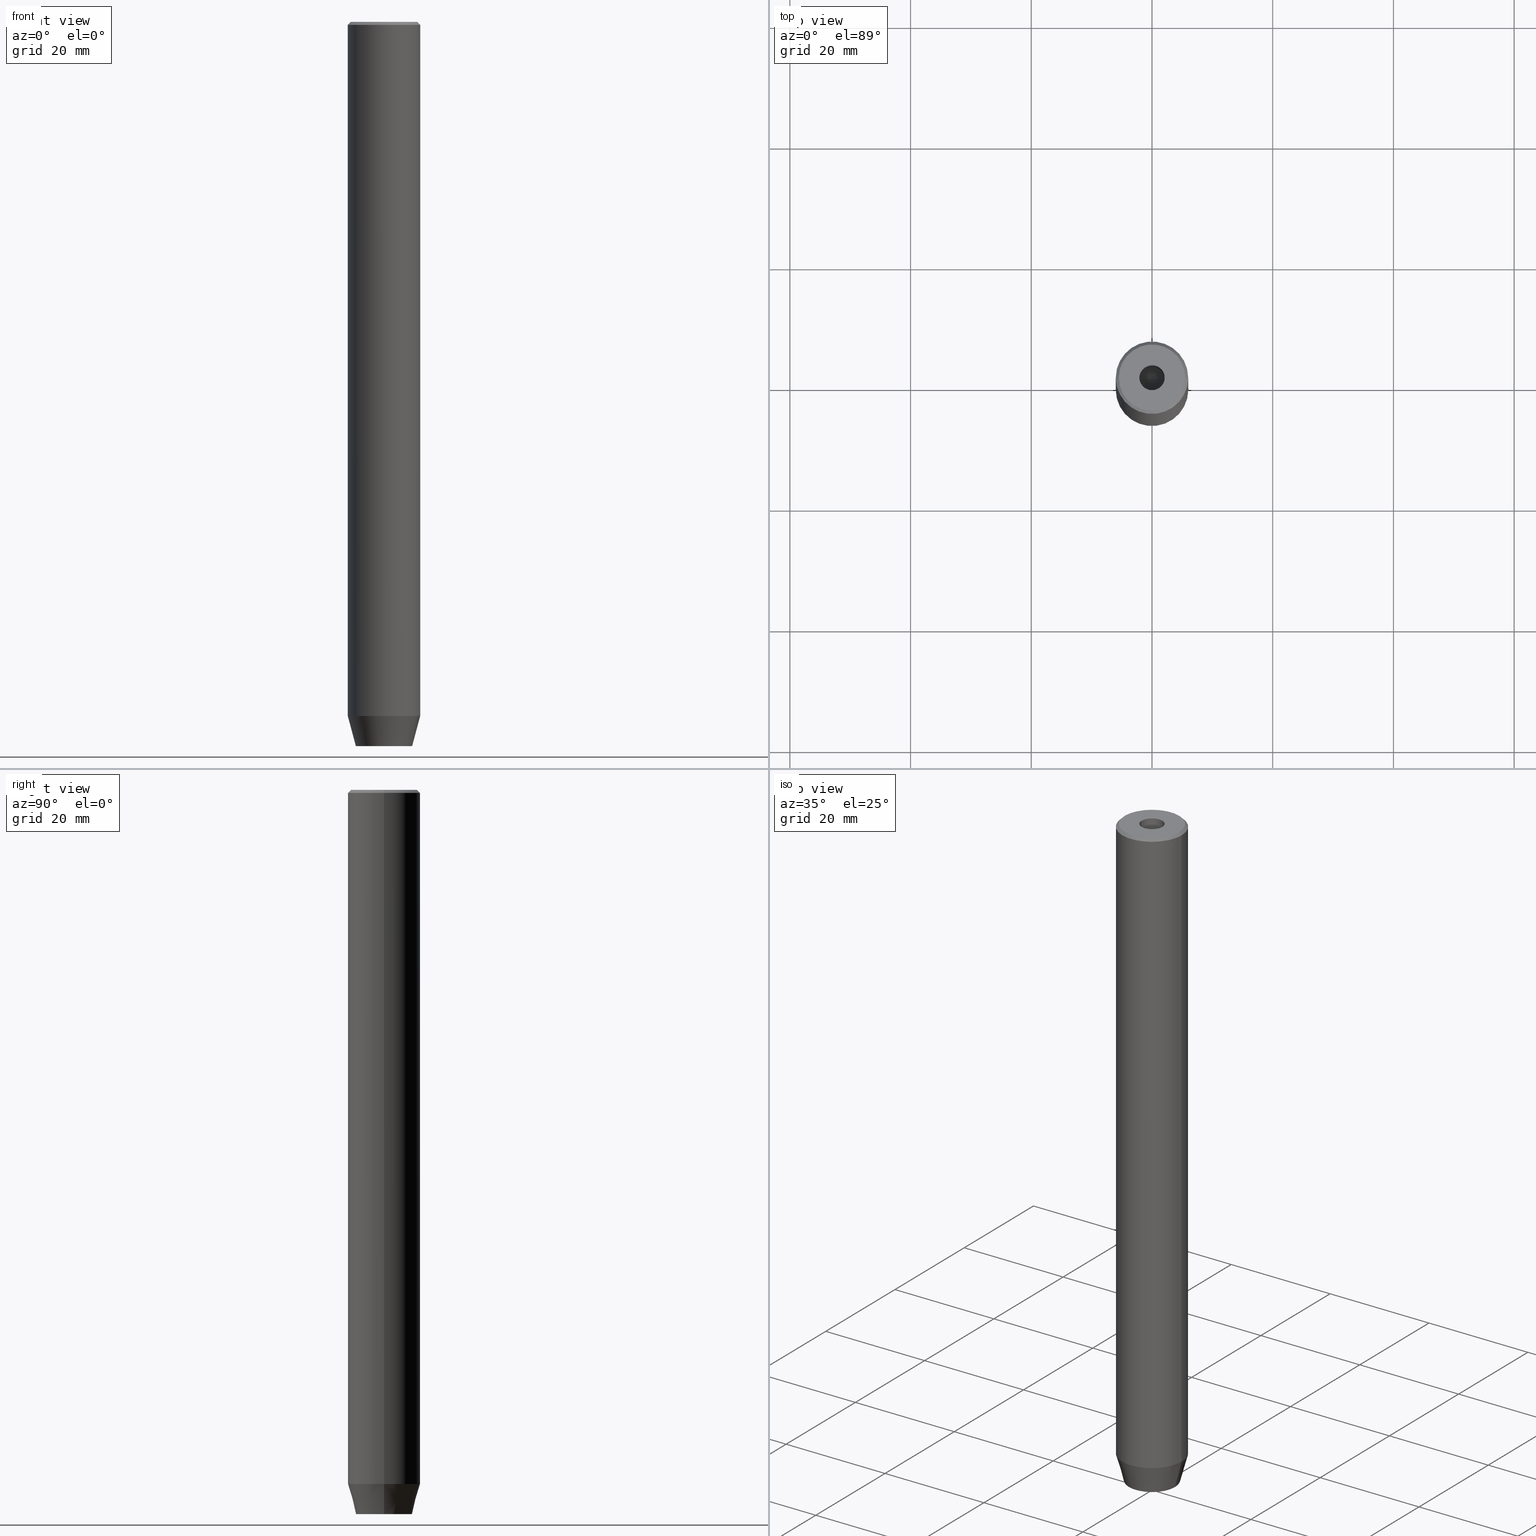
[diagram: canonical four-view strip — front | top / right | iso, engineering-drawing reading convention]
A machine part, canonical four-view strip (front | top / right | iso — engineering-drawing reading convention). The complete STEP part file that produces these views, byte-faithful:
ISO-10303-21;
HEADER;
FILE_DESCRIPTION (( 'STEP AP203' ),
    '1' );
FILE_NAME ('c9da.STEP',
    '2024-01-02T21:55:24',
    ( '' ),
    ( '' ),
    'SwSTEP 2.0',
    'SolidWorks 2019',
    '' );
FILE_SCHEMA (( 'CONFIG_CONTROL_DESIGN' ));
ENDSEC;

DATA;
#1 = CARTESIAN_POINT ( 'NONE',  ( 2.500000000000000000, -1.443375672974064106, -117.2000000000000028 ) ) ;
#2 = LINE ( 'NONE', #479, #304 ) ;
#3 = VECTOR ( 'NONE', #81, 1000.000000000000114 ) ;
#4 = ORIENTED_EDGE ( 'NONE', *, *, #407, .T. ) ;
#5 = ORIENTED_EDGE ( 'NONE', *, *, #425, .T. ) ;
#6 = APPROVAL_STATUS ( 'not_yet_approved' ) ;
#7 = FACE_OUTER_BOUND ( 'NONE', #466, .T. ) ;
#8 = ORIENTED_EDGE ( 'NONE', *, *, #184, .F. ) ;
#9 = DIRECTION ( 'NONE',  ( 0.000000000000000000, -0.000000000000000000, 1.000000000000000000 ) ) ;
#10 = ORIENTED_EDGE ( 'NONE', *, *, #412, .F. ) ;
#11 = CARTESIAN_POINT ( 'NONE',  ( -1.250000000000000444, 2.165063509461097269, -117.2000000000000028 ) ) ;
#12 = ORIENTED_EDGE ( 'NONE', *, *, #563, .F. ) ;
#13 = ORIENTED_EDGE ( 'NONE', *, *, #383, .F. ) ;
#14 = CALENDAR_DATE ( 2024, 2, 1 ) ;
#15 = EDGE_CURVE ( 'NONE', #491, #474, #441, .T. ) ;
#16 = FACE_OUTER_BOUND ( 'NONE', #166, .T. ) ;
#17 = EDGE_CURVE ( 'NONE', #374, #385, #111, .T. ) ;
#18 = CARTESIAN_POINT ( 'NONE',  ( 0.000000000000000000, 0.000000000000000000, 0.000000000000000000 ) ) ;
#19 = ORIENTED_EDGE ( 'NONE', *, *, #407, .F. ) ;
#20 = SECURITY_CLASSIFICATION_LEVEL ( 'unclassified' ) ;
#21 = DIRECTION ( 'NONE',  ( -0.000000000000000000, -0.000000000000000000, 1.000000000000000000 ) ) ;
#22 = ORIENTED_EDGE ( 'NONE', *, *, #17, .T. ) ;
#23 = DIRECTION ( 'NONE',  ( 1.000000000000000000, 0.000000000000000000, 0.000000000000000000 ) ) ;
#24 = AXIS2_PLACEMENT_3D ( 'NONE', #75, #259, #215 ) ;
#25 = PERSON_AND_ORGANIZATION ( #448, #265 ) ;
#26 = LOCAL_TIME ( 22, 55, 24.00000000000000000, #338 ) ;
#27 = DIRECTION ( 'NONE',  ( 0.000000000000000000, 0.000000000000000000, -1.000000000000000000 ) ) ;
#28 = VERTEX_POINT ( 'NONE', #135 ) ;
#29 = FACE_OUTER_BOUND ( 'NONE', #386, .T. ) ;
#30 = EDGE_CURVE ( 'NONE', #557, #61, #546, .T. ) ;
#31 = ORIENTED_EDGE ( 'NONE', *, *, #80, .F. ) ;
#32 = EDGE_CURVE ( 'NONE', #143, #233, #498, .T. ) ;
#33 = LINE ( 'NONE', #212, #462 ) ;
#34 = CARTESIAN_POINT ( 'NONE',  ( 2.099999999999996980, 0.000000000000000000, -15.00000000000000000 ) ) ;
#35 = VERTEX_POINT ( 'NONE', #587 ) ;
#36 = CARTESIAN_POINT ( 'NONE',  ( 0.000000000000000000, -2.886751345948128211, -117.2000000000000028 ) ) ;
#37 = AXIS2_PLACEMENT_3D ( 'NONE', #521, #248, #492 ) ;
#38 = VECTOR ( 'NONE', #318, 1000.000000000000000 ) ;
#39 = EDGE_LOOP ( 'NONE', ( #326, #193, #481, #330 ) ) ;
#40 = DIRECTION ( 'NONE',  ( -0.000000000000000000, -0.000000000000000000, 1.000000000000000000 ) ) ;
#41 = UNCERTAINTY_MEASURE_WITH_UNIT (LENGTH_MEASURE( 1.000000000000000082E-05 ), #65, 'distance_accuracy_value', 'NONE');
#42 = DIRECTION ( 'NONE',  ( 1.000000000000000000, 0.000000000000000000, -0.000000000000000000 ) ) ;
#43 = FACE_OUTER_BOUND ( 'NONE', #340, .T. ) ;
#44 = DIRECTION ( 'NONE',  ( -0.000000000000000000, -0.000000000000000000, 1.000000000000000000 ) ) ;
#45 = CARTESIAN_POINT ( 'NONE',  ( 0.000000000000000000, -2.886751345948128211, -117.2000000000000028 ) ) ;
#46 = DIRECTION ( 'NONE',  ( 0.000000000000000000, 0.000000000000000000, 1.000000000000000000 ) ) ;
#47 = AXIS2_PLACEMENT_3D ( 'NONE', #267, #42, #218 ) ;
#48 = AXIS2_PLACEMENT_3D ( 'NONE', #74, #21, #199 ) ;
#49 = VECTOR ( 'NONE', #294, 1000.000000000000000 ) ;
#50 = CARTESIAN_POINT ( 'NONE',  ( -5.500000000000031974, 0.000000000000000000, 0.000000000000000000 ) ) ;
#51 = CARTESIAN_POINT ( 'NONE',  ( 2.500000000000000000, 1.443375672974064328, -120.0000000000000000 ) ) ;
#52 = CARTESIAN_POINT ( 'NONE',  ( -2.500000000000000444, -1.443375672974064328, -120.0000000000000000 ) ) ;
#53 = EDGE_CURVE ( 'NONE', #161, #121, #175, .T. ) ;
#54 = VECTOR ( 'NONE', #370, 1000.000000000000000 ) ;
#55 = CC_DESIGN_APPROVAL ( #323, ( #445 ) ) ;
#56 = EDGE_LOOP ( 'NONE', ( #58, #460 ) ) ;
#57 = PERSON_AND_ORGANIZATION_ROLE ( 'creator' ) ;
#58 = ORIENTED_EDGE ( 'NONE', *, *, #93, .T. ) ;
#59 = VERTEX_POINT ( 'NONE', #51 ) ;
#60 = EDGE_CURVE ( 'NONE', #35, #415, #446, .T. ) ;
#61 = VERTEX_POINT ( 'NONE', #368 ) ;
#62 = AXIS2_PLACEMENT_3D ( 'NONE', #434, #118, #157 ) ;
#63 = AXIS2_PLACEMENT_3D ( 'NONE', #432, #27, #291 ) ;
#64 = VECTOR ( 'NONE', #123, 1000.000000000000000 ) ;
#65 =( LENGTH_UNIT ( ) NAMED_UNIT ( * ) SI_UNIT ( .MILLI., .METRE. ) );
#66 = DIRECTION ( 'NONE',  ( 0.8571673007021113344, 0.000000000000000000, 0.5150380749100558209 ) ) ;
#67 = FACE_OUTER_BOUND ( 'NONE', #100, .T. ) ;
#68 = PERSON_AND_ORGANIZATION_ROLE ( 'classification_officer' ) ;
#69 = SHAPE_DEFINITION_REPRESENTATION ( #337, #547 ) ;
#70 = AXIS2_PLACEMENT_3D ( 'NONE', #270, #178, #320 ) ;
#71 = CARTESIAN_POINT ( 'NONE',  ( -6.000000000000000000, 7.347880794884119736E-16, -114.9999999999999858 ) ) ;
#72 = DIRECTION ( 'NONE',  ( 1.000000000000000000, 0.000000000000000000, 0.000000000000000000 ) ) ;
#73 = ORIENTED_EDGE ( 'NONE', *, *, #361, .F. ) ;
#74 = CARTESIAN_POINT ( 'NONE',  ( 0.000000000000000000, 0.000000000000000000, -15.00000000000000000 ) ) ;
#75 = CARTESIAN_POINT ( 'NONE',  ( 0.000000000000000000, 0.000000000000000000, -1.990051048614449116E-16 ) ) ;
#76 = ORIENTED_EDGE ( 'NONE', *, *, #551, .F. ) ;
#77 = CARTESIAN_POINT ( 'NONE',  ( -2.500000000000000444, 0.000000000000000000, -120.0000000000000000 ) ) ;
#78 = EDGE_CURVE ( 'NONE', #553, #562, #556, .T. ) ;
#79 = AXIS2_PLACEMENT_3D ( 'NONE', #201, #394, #528 ) ;
#80 = EDGE_CURVE ( 'NONE', #121, #374, #150, .T. ) ;
#81 = DIRECTION ( 'NONE',  ( -0.8660254037844387076, 0.4999999999999998890, 0.000000000000000000 ) ) ;
#82 = ORIENTED_EDGE ( 'NONE', *, *, #197, .T. ) ;
#83 = DIRECTION ( 'NONE',  ( -0.000000000000000000, -0.000000000000000000, 1.000000000000000000 ) ) ;
#84 = FACE_OUTER_BOUND ( 'NONE', #239, .T. ) ;
#85 = PLANE ( 'NONE',  #70 ) ;
#86 = EDGE_CURVE ( 'NONE', #168, #186, #414, .T. ) ;
#87 = CONICAL_SURFACE ( 'NONE', #264, 5.500000000000031974, 0.7853981633974415066 ) ;
#88 = DIRECTION ( 'NONE',  ( -0.8571673007021113344, 1.049727191138617463E-16, 0.5150380749100558209 ) ) ;
#89 = ADVANCED_FACE ( 'NONE', ( #7 ), #452, .T. ) ;
#90 = ADVANCED_FACE ( 'NONE', ( #152 ), #506, .T. ) ;
#91 = CARTESIAN_POINT ( 'NONE',  ( 0.000000000000000000, 0.000000000000000000, 0.000000000000000000 ) ) ;
#92 = ORIENTED_EDGE ( 'NONE', *, *, #60, .F. ) ;
#93 = EDGE_CURVE ( 'NONE', #557, #312, #550, .T. ) ;
#94 = PERSON_AND_ORGANIZATION ( #448, #265 ) ;
#95 = DIRECTION ( 'NONE',  ( -0.000000000000000000, -0.000000000000000000, 1.000000000000000000 ) ) ;
#96 = VECTOR ( 'NONE', #66, 1000.000000000000000 ) ;
#97 = AXIS2_PLACEMENT_3D ( 'NONE', #342, #519, #107 ) ;
#98 = ORIENTED_EDGE ( 'NONE', *, *, #423, .T. ) ;
#99 = COORDINATED_UNIVERSAL_TIME_OFFSET ( 1, 0, .AHEAD. ) ;
#100 = EDGE_LOOP ( 'NONE', ( #260, #464, #353, #572, #341, #426 ) ) ;
#101 = CALENDAR_DATE ( 2024, 2, 1 ) ;
#102 = ORIENTED_EDGE ( 'NONE', *, *, #457, .T. ) ;
#103 = EDGE_CURVE ( 'NONE', #61, #389, #530, .T. ) ;
#104 = CIRCLE ( 'NONE', #79, 4.660254037844381081 ) ;
#105 = ORIENTED_EDGE ( 'NONE', *, *, #573, .F. ) ;
#106 = APPROVAL_STATUS ( 'not_yet_approved' ) ;
#107 = DIRECTION ( 'NONE',  ( 0.8660254037844385966, 0.4999999999999999445, 0.000000000000000000 ) ) ;
#108 = DIRECTION ( 'NONE',  ( -0.000000000000000000, -0.000000000000000000, 1.000000000000000000 ) ) ;
#109 = ORIENTED_EDGE ( 'NONE', *, *, #456, .F. ) ;
#110 = PLANE ( 'NONE',  #373 ) ;
#111 = LINE ( 'NONE', #45, #247 ) ;
#112 = ADVANCED_FACE ( 'NONE', ( #245 ), #473, .F. ) ;
#113 = LINE ( 'NONE', #520, #542 ) ;
#114 = ORIENTED_EDGE ( 'NONE', *, *, #457, .F. ) ;
#115 = FACE_OUTER_BOUND ( 'NONE', #393, .T. ) ;
#116 = PLANE ( 'NONE',  #301 ) ;
#117 = FACE_OUTER_BOUND ( 'NONE', #256, .T. ) ;
#118 = DIRECTION ( 'NONE',  ( -0.000000000000000000, -0.000000000000000000, 1.000000000000000000 ) ) ;
#119 = APPROVAL_PERSON_ORGANIZATION ( #584, #447, #141 ) ;
#120 = DIRECTION ( 'NONE',  ( 1.000000000000000000, 0.000000000000000000, 0.000000000000000000 ) ) ;
#121 = VERTEX_POINT ( 'NONE', #403 ) ;
#122 = CARTESIAN_POINT ( 'NONE',  ( -2.099999999999996980, 2.571758278209438013E-16, -15.00000000000000000 ) ) ;
#123 = DIRECTION ( 'NONE',  ( 0.000000000000000000, 1.000000000000000000, 0.000000000000000000 ) ) ;
#124 = DIRECTION ( 'NONE',  ( 0.000000000000000000, 0.000000000000000000, -1.000000000000000000 ) ) ;
#125 = ORIENTED_EDGE ( 'NONE', *, *, #339, .F. ) ;
#126 = DIRECTION ( 'NONE',  ( -0.000000000000000000, -0.000000000000000000, -1.000000000000000000 ) ) ;
#127 = ADVANCED_FACE ( 'NONE', ( #163 ), #524, .T. ) ;
#128 = EDGE_CURVE ( 'NONE', #35, #143, #299, .T. ) ;
#129 =( NAMED_UNIT ( * ) SI_UNIT ( $, .STERADIAN. ) SOLID_ANGLE_UNIT ( ) );
#130 = ORIENTED_EDGE ( 'NONE', *, *, #32, .F. ) ;
#131 = AXIS2_PLACEMENT_3D ( 'NONE', #18, #348, #213 ) ;
#132 = CARTESIAN_POINT ( 'NONE',  ( 2.500000000000000000, -1.443375672974064106, -120.0000000000000000 ) ) ;
#133 = ADVANCED_FACE ( 'NONE', ( #396 ), #116, .F. ) ;
#134 = CARTESIAN_POINT ( 'NONE',  ( 5.500000000000031974, 6.735557395310481466E-16, 0.000000000000000000 ) ) ;
#135 = CARTESIAN_POINT ( 'NONE',  ( -2.099999999999998757, 2.571758278209439985E-16, -1.990051048614449116E-16 ) ) ;
#136 = PERSON_AND_ORGANIZATION_ROLE ( 'design_owner' ) ;
#137 = CARTESIAN_POINT ( 'NONE',  ( -6.000000000000000000, 7.347880794884119736E-16, -114.9999999999999858 ) ) ;
#138 = VECTOR ( 'NONE', #421, 1000.000000000000114 ) ;
#139 = CARTESIAN_POINT ( 'NONE',  ( -6.000000000000000000, 7.347880794884119736E-16, 0.000000000000000000 ) ) ;
#140 = CARTESIAN_POINT ( 'NONE',  ( 2.500000000000000000, 0.000000000000000000, -117.2000000000000028 ) ) ;
#141 = APPROVAL_ROLE ( '' ) ;
#142 = FACE_BOUND ( 'NONE', #286, .T. ) ;
#143 = VERTEX_POINT ( 'NONE', #34 ) ;
#144 = CARTESIAN_POINT ( 'NONE',  ( 0.000000000000000000, 0.000000000000000000, -117.2000000000000028 ) ) ;
#145 = DIRECTION ( 'NONE',  ( -0.000000000000000000, -0.000000000000000000, 1.000000000000000000 ) ) ;
#146 = VECTOR ( 'NONE', #489, 1000.000000000000000 ) ;
#147 = ORIENTED_EDGE ( 'NONE', *, *, #504, .F. ) ;
#148 = EDGE_CURVE ( 'NONE', #469, #385, #255, .T. ) ;
#149 = CARTESIAN_POINT ( 'NONE',  ( -1.084202172485504434E-16, 2.886751345948129543, -117.2000000000000028 ) ) ;
#150 = LINE ( 'NONE', #237, #271 ) ;
#151 = ORIENTED_EDGE ( 'NONE', *, *, #339, .T. ) ;
#152 = FACE_OUTER_BOUND ( 'NONE', #576, .T. ) ;
#153 = ORIENTED_EDGE ( 'NONE', *, *, #30, .T. ) ;
#154 = ORIENTED_EDGE ( 'NONE', *, *, #266, .F. ) ;
#155 = DIRECTION ( 'NONE',  ( 0.000000000000000000, -1.000000000000000000, 0.000000000000000000 ) ) ;
#156 = VECTOR ( 'NONE', #336, 1000.000000000000000 ) ;
#157 = DIRECTION ( 'NONE',  ( 1.000000000000000000, 0.000000000000000000, 0.000000000000000000 ) ) ;
#158 = ADVANCED_FACE ( 'NONE', ( #343 ), #461, .F. ) ;
#159 = LINE ( 'NONE', #487, #471 ) ;
#160 = CARTESIAN_POINT ( 'NONE',  ( 2.099999999999998757, 0.000000000000000000, -1.990051048614449116E-16 ) ) ;
#161 = VERTEX_POINT ( 'NONE', #480 ) ;
#162 = DIRECTION ( 'NONE',  ( -1.000000000000000000, 0.000000000000000000, 0.000000000000000000 ) ) ;
#163 = FACE_OUTER_BOUND ( 'NONE', #39, .T. ) ;
#164 = ORIENTED_EDGE ( 'NONE', *, *, #103, .F. ) ;
#165 = DIRECTION ( 'NONE',  ( 0.8660254037844385966, -0.5000000000000001110, 0.000000000000000000 ) ) ;
#166 = EDGE_LOOP ( 'NONE', ( #327, #420, #31, #536 ) ) ;
#167 = DIRECTION ( 'NONE',  ( -0.4999999999999998890, -0.8660254037844387076, 0.000000000000000000 ) ) ;
#168 = VERTEX_POINT ( 'NONE', #306 ) ;
#169 = CC_DESIGN_PERSON_AND_ORGANIZATION_ASSIGNMENT ( #25, #68, ( #445 ) ) ;
#170 = APPLICATION_PROTOCOL_DEFINITION ( 'international standard', 'config_control_design', 1994, #257 ) ;
#171 = LINE ( 'NONE', #541, #138 ) ;
#172 = CIRCLE ( 'NONE', #202, 6.000000000000000000 ) ;
#173 = AXIS2_PLACEMENT_3D ( 'NONE', #367, #543, #549 ) ;
#174 = DIRECTION ( 'NONE',  ( 0.8660254037844387076, -0.4999999999999998890, 0.000000000000000000 ) ) ;
#175 = LINE ( 'NONE', #140, #483 ) ;
#176 = CARTESIAN_POINT ( 'NONE',  ( 0.000000000000000000, 0.000000000000000000, 0.000000000000000000 ) ) ;
#177 = CARTESIAN_POINT ( 'NONE',  ( 0.000000000000000000, 0.000000000000000000, 0.000000000000000000 ) ) ;
#178 = DIRECTION ( 'NONE',  ( 0.5000000000000001110, 0.8660254037844385966, -0.000000000000000000 ) ) ;
#179 = CARTESIAN_POINT ( 'NONE',  ( -2.099999999999996980, 2.571758278209438013E-16, -15.00000000000000000 ) ) ;
#180 = DIRECTION ( 'NONE',  ( 0.000000000000000000, 0.000000000000000000, -1.000000000000000000 ) ) ;
#181 = DIRECTION ( 'NONE',  ( 0.8660254037844385966, -0.5000000000000001110, 0.000000000000000000 ) ) ;
#182 = AXIS2_PLACEMENT_3D ( 'NONE', #569, #486, #120 ) ;
#183 = CARTESIAN_POINT ( 'NONE',  ( 0.000000000000000000, 0.000000000000000000, -114.9999999999999858 ) ) ;
#184 = EDGE_CURVE ( 'NONE', #59, #469, #159, .T. ) ;
#185 = EDGE_LOOP ( 'NONE', ( #4, #561, #214, #196 ) ) ;
#186 = VERTEX_POINT ( 'NONE', #352 ) ;
#187 = EDGE_LOOP ( 'NONE', ( #494, #230, #98 ) ) ;
#188 = EDGE_CURVE ( 'NONE', #491, #389, #113, .T. ) ;
#189 = AXIS2_PLACEMENT_3D ( 'NONE', #453, #167, #174 ) ;
#190 = ORIENTED_EDGE ( 'NONE', *, *, #235, .T. ) ;
#191 = PERSON_AND_ORGANIZATION ( #448, #265 ) ;
#192 = ORIENTED_EDGE ( 'NONE', *, *, #78, .F. ) ;
#193 = ORIENTED_EDGE ( 'NONE', *, *, #467, .T. ) ;
#194 = PLANE ( 'NONE',  #97 ) ;
#195 = CARTESIAN_POINT ( 'NONE',  ( 2.099999999999996980, 0.000000000000000000, -15.00000000000000000 ) ) ;
#196 = ORIENTED_EDGE ( 'NONE', *, *, #314, .T. ) ;
#197 = EDGE_CURVE ( 'NONE', #389, #61, #577, .T. ) ;
#198 = COORDINATED_UNIVERSAL_TIME_OFFSET ( 1, 0, .AHEAD. ) ;
#199 = DIRECTION ( 'NONE',  ( 1.000000000000000000, 0.000000000000000000, 0.000000000000000000 ) ) ;
#200 = VERTEX_POINT ( 'NONE', #206 ) ;
#201 = CARTESIAN_POINT ( 'NONE',  ( 0.000000000000000000, 0.000000000000000000, -120.0000000000000000 ) ) ;
#202 = AXIS2_PLACEMENT_3D ( 'NONE', #476, #571, #72 ) ;
#203 = VECTOR ( 'NONE', #227, 1000.000000000000000 ) ;
#204 = DATE_AND_TIME ( #14, #26 ) ;
#205 = CARTESIAN_POINT ( 'NONE',  ( -2.500000000000000444, 0.000000000000000000, -117.2000000000000028 ) ) ;
#206 = CARTESIAN_POINT ( 'NONE',  ( -2.500000000000000444, 1.443375672974064772, -120.0000000000000000 ) ) ;
#207 = ORIENTED_EDGE ( 'NONE', *, *, #197, .F. ) ;
#208 = DIRECTION ( 'NONE',  ( 0.000000000000000000, 0.000000000000000000, -1.000000000000000000 ) ) ;
#209 = CARTESIAN_POINT ( 'NONE',  ( -5.500000000000031974, 0.000000000000000000, 0.000000000000000000 ) ) ;
#210 = CARTESIAN_POINT ( 'NONE',  ( 0.000000000000000000, 0.000000000000000000, 0.000000000000000000 ) ) ;
#211 = EDGE_CURVE ( 'NONE', #474, #491, #172, .T. ) ;
#212 = CARTESIAN_POINT ( 'NONE',  ( 1.250000000000000222, 2.165063509461096825, -117.2000000000000028 ) ) ;
#213 = DIRECTION ( 'NONE',  ( 1.000000000000000000, 0.000000000000000000, 0.000000000000000000 ) ) ;
#214 = ORIENTED_EDGE ( 'NONE', *, *, #548, .F. ) ;
#215 = DIRECTION ( 'NONE',  ( 1.000000000000000000, 0.000000000000000000, 0.000000000000000000 ) ) ;
#216 = ORIENTED_EDGE ( 'NONE', *, *, #551, .T. ) ;
#217 = DIRECTION ( 'NONE',  ( 1.000000000000000000, 0.000000000000000000, 0.000000000000000000 ) ) ;
#218 = DIRECTION ( 'NONE',  ( -0.000000000000000000, 0.000000000000000000, -1.000000000000000000 ) ) ;
#219 = DIRECTION ( 'NONE',  ( -1.000000000000000000, 0.000000000000000000, 0.000000000000000000 ) ) ;
#220 = LINE ( 'NONE', #134, #38 ) ;
#221 = CARTESIAN_POINT ( 'NONE',  ( 2.099999999999997868, 0.000000000000000000, 0.000000000000000000 ) ) ;
#222 = VECTOR ( 'NONE', #181, 1000.000000000000000 ) ;
#223 = DIRECTION ( 'NONE',  ( 1.000000000000000000, 0.000000000000000000, 0.000000000000000000 ) ) ;
#224 = PLANE ( 'NONE',  #189 ) ;
#225 = LINE ( 'NONE', #139, #203 ) ;
#226 = ADVANCED_FACE ( 'NONE', ( #251 ), #424, .F. ) ;
#227 = DIRECTION ( 'NONE',  ( -0.000000000000000000, -0.000000000000000000, 1.000000000000000000 ) ) ;
#228 = CONICAL_SURFACE ( 'NONE', #377, 6.000000000000000000, 0.2617993877991502405 ) ;
#229 = LOCAL_TIME ( 22, 55, 24.00000000000000000, #332 ) ;
#230 = ORIENTED_EDGE ( 'NONE', *, *, #60, .T. ) ;
#231 = DATE_AND_TIME ( #277, #229 ) ;
#232 = CARTESIAN_POINT ( 'NONE',  ( 0.000000000000000000, 0.000000000000000000, 0.000000000000000000 ) ) ;
#233 = VERTEX_POINT ( 'NONE', #160 ) ;
#234 = ORIENTED_EDGE ( 'NONE', *, *, #15, .F. ) ;
#235 = EDGE_CURVE ( 'NONE', #168, #200, #526, .T. ) ;
#236 = AXIS2_PLACEMENT_3D ( 'NONE', #232, #9, #522 ) ;
#237 = CARTESIAN_POINT ( 'NONE',  ( 1.249999999999999778, -2.165063509461096380, -117.2000000000000028 ) ) ;
#238 =( GEOMETRIC_REPRESENTATION_CONTEXT ( 3 ) GLOBAL_UNCERTAINTY_ASSIGNED_CONTEXT ( ( #41 ) ) GLOBAL_UNIT_ASSIGNED_CONTEXT ( ( #65, #429, #129 ) ) REPRESENTATION_CONTEXT ( 'NONE', 'WORKASPACE' ) );
#239 = EDGE_LOOP ( 'NONE', ( #433, #109, #422, #288 ) ) ;
#240 = LINE ( 'NONE', #309, #49 ) ;
#241 = ADVANCED_FACE ( 'NONE', ( #490 ), #224, .F. ) ;
#242 = DIRECTION ( 'NONE',  ( -0.8660254037844387076, -0.5000000000000001110, 0.000000000000000000 ) ) ;
#243 = ORIENTED_EDGE ( 'NONE', *, *, #188, .T. ) ;
#244 = PLANE ( 'NONE',  #249 ) ;
#245 = FACE_OUTER_BOUND ( 'NONE', #565, .T. ) ;
#246 = VERTEX_POINT ( 'NONE', #533 ) ;
#247 = VECTOR ( 'NONE', #262, 1000.000000000000000 ) ;
#248 = DIRECTION ( 'NONE',  ( -0.000000000000000000, -0.000000000000000000, 1.000000000000000000 ) ) ;
#249 = AXIS2_PLACEMENT_3D ( 'NONE', #144, #180, #503 ) ;
#250 = CARTESIAN_POINT ( 'NONE',  ( -4.660254037844381081, 6.527522992771884330E-16, -120.0000000000000000 ) ) ;
#251 = FACE_OUTER_BOUND ( 'NONE', #187, .T. ) ;
#252 = ORIENTED_EDGE ( 'NONE', *, *, #314, .F. ) ;
#253 = ADVANCED_FACE ( 'NONE', ( #43 ), #87, .T. ) ;
#254 = PERSON_AND_ORGANIZATION_ROLE ( 'design_supplier' ) ;
#255 = LINE ( 'NONE', #575, #585 ) ;
#256 = EDGE_LOOP ( 'NONE', ( #10, #192 ) ) ;
#257 = APPLICATION_CONTEXT ( 'configuration controlled 3d designs of mechanical parts and assemblies' ) ;
#258 = APPLICATION_PROTOCOL_DEFINITION ( 'international standard', 'config_control_design', 1994, #387 ) ;
#259 = DIRECTION ( 'NONE',  ( -0.000000000000000000, -0.000000000000000000, 1.000000000000000000 ) ) ;
#260 = ORIENTED_EDGE ( 'NONE', *, *, #86, .T. ) ;
#261 = CARTESIAN_POINT ( 'NONE',  ( 0.000000000000000000, 0.000000000000000000, -114.9999999999999858 ) ) ;
#262 = DIRECTION ( 'NONE',  ( -0.000000000000000000, -0.000000000000000000, -1.000000000000000000 ) ) ;
#263 = VECTOR ( 'NONE', #372, 1000.000000000000000 ) ;
#264 = AXIS2_PLACEMENT_3D ( 'NONE', #177, #124, #219 ) ;
#265 = ORGANIZATION ( 'NEUR�EN�', 'NEUR�EN�', '' ) ;
#266 = EDGE_CURVE ( 'NONE', #233, #28, #313, .T. ) ;
#267 = CARTESIAN_POINT ( 'NONE',  ( 2.500000000000000000, 0.000000000000000000, -117.2000000000000028 ) ) ;
#268 = DIRECTION ( 'NONE',  ( -1.000000000000000000, 0.000000000000000000, 0.000000000000000000 ) ) ;
#269 = CC_DESIGN_PERSON_AND_ORGANIZATION_ASSIGNMENT ( #94, #57, ( #523 ) ) ;
#270 = CARTESIAN_POINT ( 'NONE',  ( 1.250000000000000222, 2.165063509461096825, -117.2000000000000028 ) ) ;
#271 = VECTOR ( 'NONE', #329, 999.9999999999998863 ) ;
#272 = AXIS2_PLACEMENT_3D ( 'NONE', #91, #459, #283 ) ;
#273 = LOCAL_TIME ( 22, 55, 24.00000000000000000, #324 ) ;
#274 = EDGE_CURVE ( 'NONE', #374, #430, #359, .T. ) ;
#275 = PERSON_AND_ORGANIZATION ( #448, #265 ) ;
#276 = ADVANCED_FACE ( 'NONE', ( #84 ), #451, .F. ) ;
#277 = CALENDAR_DATE ( 2024, 2, 1 ) ;
#278 = PLANE ( 'NONE',  #236 ) ;
#279 = EDGE_LOOP ( 'NONE', ( #517, #334, #153, #207 ) ) ;
#280 = EDGE_LOOP ( 'NONE', ( #92, #296, #102 ) ) ;
#281 = VECTOR ( 'NONE', #126, 1000.000000000000000 ) ;
#282 = CARTESIAN_POINT ( 'NONE',  ( 5.500000000000031974, 7.041719095097299615E-16, 0.000000000000000000 ) ) ;
#283 = DIRECTION ( 'NONE',  ( 1.000000000000000000, 0.000000000000000000, 0.000000000000000000 ) ) ;
#284 = ORIENTED_EDGE ( 'NONE', *, *, #148, .F. ) ;
#285 = ORIENTED_EDGE ( 'NONE', *, *, #86, .F. ) ;
#286 = EDGE_LOOP ( 'NONE', ( #154, #147 ) ) ;
#287 = AXIS2_PLACEMENT_3D ( 'NONE', #440, #356, #400 ) ;
#288 = ORIENTED_EDGE ( 'NONE', *, *, #361, .T. ) ;
#289 = ADVANCED_FACE ( 'NONE', ( #409 ), #558, .T. ) ;
#290 = APPROVAL_ROLE ( '' ) ;
#291 = DIRECTION ( 'NONE',  ( 1.000000000000000000, 0.000000000000000000, 0.000000000000000000 ) ) ;
#292 = ORIENTED_EDGE ( 'NONE', *, *, #78, .T. ) ;
#293 = CARTESIAN_POINT ( 'NONE',  ( 0.000000000000000000, -2.886751345948128211, -120.0000000000000000 ) ) ;
#294 = DIRECTION ( 'NONE',  ( 0.8660254037844385966, 0.5000000000000001110, 0.000000000000000000 ) ) ;
#295 = DIRECTION ( 'NONE',  ( -0.5000000000000001110, 0.8660254037844385966, 0.000000000000000000 ) ) ;
#296 = ORIENTED_EDGE ( 'NONE', *, *, #128, .T. ) ;
#297 = CARTESIAN_POINT ( 'NONE',  ( -2.500000000000000444, 0.000000000000000000, -117.2000000000000028 ) ) ;
#298 = APPROVAL_DATE_TIME ( #525, #323 ) ;
#299 = LINE ( 'NONE', #195, #96 ) ;
#300 = ORIENTED_EDGE ( 'NONE', *, *, #412, .T. ) ;
#301 = AXIS2_PLACEMENT_3D ( 'NONE', #388, #295, #564 ) ;
#302 = FACE_OUTER_BOUND ( 'NONE', #185, .T. ) ;
#303 = EDGE_CURVE ( 'NONE', #385, #510, #171, .T. ) ;
#304 = VECTOR ( 'NONE', #458, 1000.000000000000000 ) ;
#305 = CIRCLE ( 'NONE', #173, 2.099999999999996980 ) ;
#306 = CARTESIAN_POINT ( 'NONE',  ( -2.500000000000000444, 1.443375672974064772, -117.2000000000000028 ) ) ;
#307 = ORIENTED_EDGE ( 'NONE', *, *, #303, .F. ) ;
#308 = LINE ( 'NONE', #77, #146 ) ;
#309 = CARTESIAN_POINT ( 'NONE',  ( -1.250000000000000444, 2.165063509461097269, -120.0000000000000000 ) ) ;
#310 = ORIENTED_EDGE ( 'NONE', *, *, #475, .T. ) ;
#311 = CYLINDRICAL_SURFACE ( 'NONE', #37, 2.099999999999997868 ) ;
#312 = VERTEX_POINT ( 'NONE', #282 ) ;
#313 = CIRCLE ( 'NONE', #24, 2.099999999999998757 ) ;
#314 = EDGE_CURVE ( 'NONE', #430, #510, #2, .T. ) ;
#315 = APPROVAL_PERSON_ORGANIZATION ( #435, #323, #290 ) ;
#316 = CARTESIAN_POINT ( 'NONE',  ( 1.250000000000000222, 2.165063509461096825, -120.0000000000000000 ) ) ;
#317 = MANIFOLD_SOLID_BREP ( 'Vrt�k z�vitn�ku pro M5 z�vit1', #509 ) ;
#318 = DIRECTION ( 'NONE',  ( 0.7071067811865426878, 8.659560562354873694E-17, -0.7071067811865524577 ) ) ;
#319 = APPROVAL_STATUS ( 'not_yet_approved' ) ;
#320 = DIRECTION ( 'NONE',  ( -0.8660254037844385966, 0.5000000000000001110, 0.000000000000000000 ) ) ;
#321 = ADVANCED_FACE ( 'NONE', ( #142, #417 ), #278, .T. ) ;
#322 = DIRECTION ( 'NONE',  ( 0.000000000000000000, -1.000000000000000000, 0.000000000000000000 ) ) ;
#323 = APPROVAL ( #106, 'NEUR�EN�' ) ;
#324 = COORDINATED_UNIVERSAL_TIME_OFFSET ( 1, 0, .AHEAD. ) ;
#325 = DIRECTION ( 'NONE',  ( 1.000000000000000000, 0.000000000000000000, 0.000000000000000000 ) ) ;
#326 = ORIENTED_EDGE ( 'NONE', *, *, #15, .T. ) ;
#327 = ORIENTED_EDGE ( 'NONE', *, *, #148, .T. ) ;
#328 = DATE_AND_TIME ( #560, #273 ) ;
#329 = DIRECTION ( 'NONE',  ( -0.8660254037844387076, -0.5000000000000001110, 0.000000000000000000 ) ) ;
#330 = ORIENTED_EDGE ( 'NONE', *, *, #188, .F. ) ;
#331 = VECTOR ( 'NONE', #501, 1000.000000000000000 ) ;
#332 = COORDINATED_UNIVERSAL_TIME_OFFSET ( 1, 0, .AHEAD. ) ;
#333 = AXIS2_PLACEMENT_3D ( 'NONE', #581, #499, #268 ) ;
#334 = ORIENTED_EDGE ( 'NONE', *, *, #93, .F. ) ;
#335 = DATE_TIME_ROLE ( 'creation_date' ) ;
#336 = DIRECTION ( 'NONE',  ( -0.000000000000000000, -0.000000000000000000, -1.000000000000000000 ) ) ;
#337 = PRODUCT_DEFINITION_SHAPE ( 'NONE', 'NONE',  #523 ) ;
#338 = COORDINATED_UNIVERSAL_TIME_OFFSET ( 1, 0, .AHEAD. ) ;
#339 = EDGE_CURVE ( 'NONE', #186, #246, #505, .T. ) ;
#340 = EDGE_LOOP ( 'NONE', ( #13, #349, #164, #527 ) ) ;
#341 = ORIENTED_EDGE ( 'NONE', *, *, #274, .T. ) ;
#342 = CARTESIAN_POINT ( 'NONE',  ( 1.249999999999999778, -2.165063509461096380, -117.2000000000000028 ) ) ;
#343 = FACE_OUTER_BOUND ( 'NONE', #280, .T. ) ;
#344 = CC_DESIGN_APPROVAL ( #347, ( #559 ) ) ;
#345 = ORIENTED_EDGE ( 'NONE', *, *, #423, .F. ) ;
#346 = FACE_BOUND ( 'NONE', #477, .T. ) ;
#347 = APPROVAL ( #6, 'NEUR�EN�' ) ;
#348 = DIRECTION ( 'NONE',  ( -0.000000000000000000, -0.000000000000000000, 1.000000000000000000 ) ) ;
#349 = ORIENTED_EDGE ( 'NONE', *, *, #513, .T. ) ;
#350 = DATE_TIME_ROLE ( 'classification_date' ) ;
#351 = ADVANCED_FACE ( 'NONE', ( #67 ), #244, .T. ) ;
#352 = CARTESIAN_POINT ( 'NONE',  ( -1.084202172485504434E-16, 2.886751345948129543, -117.2000000000000028 ) ) ;
#353 = ORIENTED_EDGE ( 'NONE', *, *, #53, .T. ) ;
#354 = DIRECTION ( 'NONE',  ( 0.000000000000000000, 0.000000000000000000, 1.000000000000000000 ) ) ;
#355 = DIRECTION ( 'NONE',  ( -0.2588190451025214611, 3.169619151431774186E-17, 0.9659258262890679791 ) ) ;
#356 = DIRECTION ( 'NONE',  ( -0.000000000000000000, -0.000000000000000000, 1.000000000000000000 ) ) ;
#357 = VECTOR ( 'NONE', #363, 1000.000000000000000 ) ;
#358 = CARTESIAN_POINT ( 'NONE',  ( 6.000000000000000000, 0.000000000000000000, -0.4999999999999752975 ) ) ;
#359 = LINE ( 'NONE', #493, #3 ) ;
#360 = ORIENTED_EDGE ( 'NONE', *, *, #450, .F. ) ;
#361 = EDGE_CURVE ( 'NONE', #161, #59, #535, .T. ) ;
#362 = MECHANICAL_CONTEXT ( 'NONE', #257, 'mechanical' ) ;
#363 = DIRECTION ( 'NONE',  ( -0.000000000000000000, -0.000000000000000000, -1.000000000000000000 ) ) ;
#364 = LINE ( 'NONE', #1, #54 ) ;
#365 = AXIS2_PLACEMENT_3D ( 'NONE', #210, #431, #23 ) ;
#366 = CIRCLE ( 'NONE', #502, 2.099999999999998757 ) ;
#367 = CARTESIAN_POINT ( 'NONE',  ( 0.000000000000000000, 0.000000000000000000, -15.00000000000000000 ) ) ;
#368 = CARTESIAN_POINT ( 'NONE',  ( -6.000000000000000000, 7.347880794884119736E-16, -0.4999999999999752975 ) ) ;
#369 = PERSON_AND_ORGANIZATION ( #448, #265 ) ;
#370 = DIRECTION ( 'NONE',  ( -0.000000000000000000, -0.000000000000000000, -1.000000000000000000 ) ) ;
#371 = CARTESIAN_POINT ( 'NONE',  ( -2.500000000000000444, -1.443375672974064328, -117.2000000000000028 ) ) ;
#372 = DIRECTION ( 'NONE',  ( -0.000000000000000000, -0.000000000000000000, 1.000000000000000000 ) ) ;
#373 = AXIS2_PLACEMENT_3D ( 'NONE', #478, #208, #398 ) ;
#374 = VERTEX_POINT ( 'NONE', #36 ) ;
#375 = ADVANCED_FACE ( 'NONE', ( #115 ), #311, .F. ) ;
#376 = EDGE_LOOP ( 'NONE', ( #515, #125, #285, #190 ) ) ;
#377 = AXIS2_PLACEMENT_3D ( 'NONE', #261, #40, #482 ) ;
#378 = LOCAL_TIME ( 22, 55, 24.00000000000000000, #99 ) ;
#379 = APPROVAL_PERSON_ORGANIZATION ( #516, #347, #454 ) ;
#380 = ORIENTED_EDGE ( 'NONE', *, *, #274, .F. ) ;
#381 = PERSON_AND_ORGANIZATION_ROLE ( 'creator' ) ;
#382 = ADVANCED_FACE ( 'NONE', ( #29 ), #228, .T. ) ;
#383 = EDGE_CURVE ( 'NONE', #312, #557, #511, .T. ) ;
#384 = DIRECTION ( 'NONE',  ( 1.000000000000000000, 0.000000000000000000, 0.000000000000000000 ) ) ;
#385 = VERTEX_POINT ( 'NONE', #293 ) ;
#386 = EDGE_LOOP ( 'NONE', ( #76, #292, #401, #397 ) ) ;
#387 = APPLICATION_CONTEXT ( 'configuration controlled 3d designs of mechanical parts and assemblies' ) ;
#388 = CARTESIAN_POINT ( 'NONE',  ( -1.250000000000000444, 2.165063509461097269, -117.2000000000000028 ) ) ;
#389 = VERTEX_POINT ( 'NONE', #358 ) ;
#390 = AXIS2_PLACEMENT_3D ( 'NONE', #183, #95, #384 ) ;
#391 = DIRECTION ( 'NONE',  ( 1.000000000000000000, 0.000000000000000000, 0.000000000000000000 ) ) ;
#392 = VECTOR ( 'NONE', #83, 1000.000000000000000 ) ;
#393 = EDGE_LOOP ( 'NONE', ( #345, #310, #419, #130 ) ) ;
#394 = DIRECTION ( 'NONE',  ( -0.000000000000000000, -0.000000000000000000, 1.000000000000000000 ) ) ;
#395 = ADVANCED_FACE ( 'NONE', ( #346, #117 ), #110, .T. ) ;
#396 = FACE_OUTER_BOUND ( 'NONE', #376, .T. ) ;
#397 = ORIENTED_EDGE ( 'NONE', *, *, #211, .F. ) ;
#398 = DIRECTION ( 'NONE',  ( -1.000000000000000000, 0.000000000000000000, -0.000000000000000000 ) ) ;
#399 = CARTESIAN_POINT ( 'NONE',  ( 4.660254037844381081, 0.000000000000000000, -120.0000000000000000 ) ) ;
#400 = DIRECTION ( 'NONE',  ( 1.000000000000000000, 0.000000000000000000, 0.000000000000000000 ) ) ;
#401 = ORIENTED_EDGE ( 'NONE', *, *, #450, .T. ) ;
#402 = VECTOR ( 'NONE', #88, 1000.000000000000000 ) ;
#403 = CARTESIAN_POINT ( 'NONE',  ( 2.500000000000000000, -1.443375672974064106, -117.2000000000000028 ) ) ;
#404 = AXIS2_PLACEMENT_3D ( 'NONE', #555, #145, #391 ) ;
#405 = ADVANCED_FACE ( 'NONE', ( #302 ), #532, .F. ) ;
#406 = ORIENTED_EDGE ( 'NONE', *, *, #303, .T. ) ;
#407 = EDGE_CURVE ( 'NONE', #510, #200, #308, .T. ) ;
#408 = CARTESIAN_POINT ( 'NONE',  ( 0.000000000000000000, 0.000000000000000000, -120.0000000000000000 ) ) ;
#409 = FACE_OUTER_BOUND ( 'NONE', #279, .T. ) ;
#410 = CARTESIAN_POINT ( 'NONE',  ( 6.000000000000000000, 0.000000000000000000, -114.9999999999999858 ) ) ;
#411 = AXIS2_PLACEMENT_3D ( 'NONE', #297, #162, #354 ) ;
#412 = EDGE_CURVE ( 'NONE', #562, #553, #104, .T. ) ;
#413 = CC_DESIGN_DATE_AND_TIME_ASSIGNMENT ( #204, #350, ( #445 ) ) ;
#414 = LINE ( 'NONE', #11, #518 ) ;
#415 = VERTEX_POINT ( 'NONE', #122 ) ;
#416 = PRODUCT ( 'c9da', 'c9da', '', ( #362 ) ) ;
#417 = FACE_OUTER_BOUND ( 'NONE', #56, .T. ) ;
#418 = CC_DESIGN_DATE_AND_TIME_ASSIGNMENT ( #231, #335, ( #523 ) ) ;
#419 = ORIENTED_EDGE ( 'NONE', *, *, #504, .T. ) ;
#420 = ORIENTED_EDGE ( 'NONE', *, *, #17, .F. ) ;
#421 = DIRECTION ( 'NONE',  ( -0.8660254037844387076, 0.4999999999999998890, 0.000000000000000000 ) ) ;
#422 = ORIENTED_EDGE ( 'NONE', *, *, #53, .F. ) ;
#423 = EDGE_CURVE ( 'NONE', #415, #143, #495, .T. ) ;
#424 = CONICAL_SURFACE ( 'NONE', #48, 2.099999999999996980, 1.029744258676652535 ) ;
#425 = EDGE_CURVE ( 'NONE', #246, #59, #586, .T. ) ;
#426 = ORIENTED_EDGE ( 'NONE', *, *, #548, .T. ) ;
#427 = CC_DESIGN_PERSON_AND_ORGANIZATION_ASSIGNMENT ( #191, #381, ( #559 ) ) ;
#428 = DIRECTION ( 'NONE',  ( 1.000000000000000000, 0.000000000000000000, 0.000000000000000000 ) ) ;
#429 =( NAMED_UNIT ( * ) PLANE_ANGLE_UNIT ( ) SI_UNIT ( $, .RADIAN. ) );
#430 = VERTEX_POINT ( 'NONE', #371 ) ;
#431 = DIRECTION ( 'NONE',  ( -0.000000000000000000, -0.000000000000000000, 1.000000000000000000 ) ) ;
#432 = CARTESIAN_POINT ( 'NONE',  ( 0.000000000000000000, 0.000000000000000000, -0.4999999999999752975 ) ) ;
#433 = ORIENTED_EDGE ( 'NONE', *, *, #184, .T. ) ;
#434 = CARTESIAN_POINT ( 'NONE',  ( 0.000000000000000000, 0.000000000000000000, -114.9999999999999858 ) ) ;
#435 = PERSON_AND_ORGANIZATION ( #448, #265 ) ;
#436 = CARTESIAN_POINT ( 'NONE',  ( -2.500000000000000444, 1.443375672974064772, -117.2000000000000028 ) ) ;
#437 = ORIENTED_EDGE ( 'NONE', *, *, #467, .F. ) ;
#438 = CARTESIAN_POINT ( 'NONE',  ( 2.500000000000000000, 1.443375672974064328, -117.2000000000000028 ) ) ;
#439 = LINE ( 'NONE', #205, #64 ) ;
#440 = CARTESIAN_POINT ( 'NONE',  ( 0.000000000000000000, 0.000000000000000000, 0.000000000000000000 ) ) ;
#441 = CIRCLE ( 'NONE', #62, 6.000000000000000000 ) ;
#442 = EDGE_LOOP ( 'NONE', ( #5, #73, #12, #151 ) ) ;
#443 = AXIS2_PLACEMENT_3D ( 'NONE', #531, #578, #428 ) ;
#444 = DIRECTION ( 'NONE',  ( -0.000000000000000000, -0.000000000000000000, 1.000000000000000000 ) ) ;
#445 = SECURITY_CLASSIFICATION ( '', '', #20 ) ;
#446 = LINE ( 'NONE', #179, #402 ) ;
#447 = APPROVAL ( #319, 'NEUR�EN�' ) ;
#448 = PERSON ( 'NEUR�EN�', 'NEUR�EN�', 'NEUR�EN�', ('NEUR�EN�'), ('NEUR�EN�'), ('NEUR�EN�') ) ;
#449 = CARTESIAN_POINT ( 'NONE',  ( 6.000000000000000000, 0.000000000000000000, -114.9999999999999858 ) ) ;
#450 = EDGE_CURVE ( 'NONE', #562, #491, #455, .T. ) ;
#451 = PLANE ( 'NONE',  #47 ) ;
#452 = CONICAL_SURFACE ( 'NONE', #390, 6.000000000000000000, 0.2617993877991502405 ) ;
#453 = CARTESIAN_POINT ( 'NONE',  ( -1.249999999999999556, -2.165063509461096825, -117.2000000000000028 ) ) ;
#454 = APPROVAL_ROLE ( '' ) ;
#455 = LINE ( 'NONE', #410, #566 ) ;
#456 = EDGE_CURVE ( 'NONE', #121, #469, #364, .T. ) ;
#457 = EDGE_CURVE ( 'NONE', #143, #415, #305, .T. ) ;
#458 = DIRECTION ( 'NONE',  ( -0.000000000000000000, -0.000000000000000000, -1.000000000000000000 ) ) ;
#459 = DIRECTION ( 'NONE',  ( -0.000000000000000000, -0.000000000000000000, 1.000000000000000000 ) ) ;
#460 = ORIENTED_EDGE ( 'NONE', *, *, #383, .T. ) ;
#461 = CONICAL_SURFACE ( 'NONE', #182, 2.099999999999996980, 1.029744258676652535 ) ;
#462 = VECTOR ( 'NONE', #165, 1000.000000000000000 ) ;
#463 = APPROVAL_DATE_TIME ( #328, #447 ) ;
#464 = ORIENTED_EDGE ( 'NONE', *, *, #563, .T. ) ;
#465 = DATE_AND_TIME ( #101, #378 ) ;
#466 = EDGE_LOOP ( 'NONE', ( #300, #216, #234, #360 ) ) ;
#467 = EDGE_CURVE ( 'NONE', #474, #61, #225, .T. ) ;
#468 = APPROVAL_DATE_TIME ( #465, #347 ) ;
#469 = VERTEX_POINT ( 'NONE', #132 ) ;
#470 = CC_DESIGN_PERSON_AND_ORGANIZATION_ASSIGNMENT ( #369, #136, ( #416 ) ) ;
#471 = VECTOR ( 'NONE', #155, 1000.000000000000000 ) ;
#472 = LOCAL_TIME ( 22, 55, 24.00000000000000000, #198 ) ;
#473 = CYLINDRICAL_SURFACE ( 'NONE', #131, 2.099999999999997868 ) ;
#474 = VERTEX_POINT ( 'NONE', #137 ) ;
#475 = EDGE_CURVE ( 'NONE', #415, #28, #580, .T. ) ;
#476 = CARTESIAN_POINT ( 'NONE',  ( 0.000000000000000000, 0.000000000000000000, -114.9999999999999858 ) ) ;
#477 = EDGE_LOOP ( 'NONE', ( #105, #19, #307, #284, #8, #508 ) ) ;
#478 = CARTESIAN_POINT ( 'NONE',  ( 0.000000000000000000, 4.660254037844381081, -120.0000000000000000 ) ) ;
#479 = CARTESIAN_POINT ( 'NONE',  ( -2.500000000000000444, -1.443375672974064328, -117.2000000000000028 ) ) ;
#480 = CARTESIAN_POINT ( 'NONE',  ( 2.500000000000000000, 1.443375672974064328, -117.2000000000000028 ) ) ;
#481 = ORIENTED_EDGE ( 'NONE', *, *, #103, .T. ) ;
#482 = DIRECTION ( 'NONE',  ( 1.000000000000000000, 0.000000000000000000, 0.000000000000000000 ) ) ;
#483 = VECTOR ( 'NONE', #322, 1000.000000000000000 ) ;
#484 = LINE ( 'NONE', #71, #497 ) ;
#485 = AXIS2_PLACEMENT_3D ( 'NONE', #570, #444, #217 ) ;
#486 = DIRECTION ( 'NONE',  ( -0.000000000000000000, -0.000000000000000000, 1.000000000000000000 ) ) ;
#487 = CARTESIAN_POINT ( 'NONE',  ( 2.500000000000000000, 0.000000000000000000, -120.0000000000000000 ) ) ;
#488 = EDGE_LOOP ( 'NONE', ( #406, #252, #380, #22 ) ) ;
#489 = DIRECTION ( 'NONE',  ( 0.000000000000000000, 1.000000000000000000, 0.000000000000000000 ) ) ;
#490 = FACE_OUTER_BOUND ( 'NONE', #488, .T. ) ;
#491 = VERTEX_POINT ( 'NONE', #449 ) ;
#492 = DIRECTION ( 'NONE',  ( 1.000000000000000000, 0.000000000000000000, 0.000000000000000000 ) ) ;
#493 = CARTESIAN_POINT ( 'NONE',  ( -1.249999999999999556, -2.165063509461096825, -117.2000000000000028 ) ) ;
#494 = ORIENTED_EDGE ( 'NONE', *, *, #128, .F. ) ;
#495 = CIRCLE ( 'NONE', #485, 2.099999999999996980 ) ;
#496 = DIRECTION ( 'NONE',  ( 1.000000000000000000, 0.000000000000000000, 0.000000000000000000 ) ) ;
#497 = VECTOR ( 'NONE', #355, 1000.000000000000114 ) ;
#498 = LINE ( 'NONE', #221, #263 ) ;
#499 = DIRECTION ( 'NONE',  ( 0.000000000000000000, 0.000000000000000000, -1.000000000000000000 ) ) ;
#500 = FACE_OUTER_BOUND ( 'NONE', #442, .T. ) ;
#501 = DIRECTION ( 'NONE',  ( -0.7071067811865426878, 0.000000000000000000, -0.7071067811865524577 ) ) ;
#502 = AXIS2_PLACEMENT_3D ( 'NONE', #537, #44, #496 ) ;
#503 = DIRECTION ( 'NONE',  ( -1.000000000000000000, 0.000000000000000000, -0.000000000000000000 ) ) ;
#504 = EDGE_CURVE ( 'NONE', #28, #233, #366, .T. ) ;
#505 = LINE ( 'NONE', #149, #156 ) ;
#506 = CYLINDRICAL_SURFACE ( 'NONE', #272, 6.000000000000000000 ) ;
#507 = ORIENTED_EDGE ( 'NONE', *, *, #211, .T. ) ;
#508 = ORIENTED_EDGE ( 'NONE', *, *, #425, .F. ) ;
#509 = CLOSED_SHELL ( 'NONE', ( #375, #226, #253, #89, #127, #395, #321, #90, #382, #289, #133, #405, #241, #574, #276, #540, #351, #158, #112 ) ) ;
#510 = VERTEX_POINT ( 'NONE', #52 ) ;
#511 = CIRCLE ( 'NONE', #365, 5.500000000000031974 ) ;
#512 = CC_DESIGN_SECURITY_CLASSIFICATION ( #445, ( #559 ) ) ;
#513 = EDGE_CURVE ( 'NONE', #312, #389, #220, .T. ) ;
#514 = DIRECTION ( 'NONE',  ( 0.8660254037844385966, 0.5000000000000001110, 0.000000000000000000 ) ) ;
#515 = ORIENTED_EDGE ( 'NONE', *, *, #573, .T. ) ;
#516 = PERSON_AND_ORGANIZATION ( #448, #265 ) ;
#517 = ORIENTED_EDGE ( 'NONE', *, *, #513, .F. ) ;
#518 = VECTOR ( 'NONE', #514, 1000.000000000000000 ) ;
#519 = DIRECTION ( 'NONE',  ( 0.5000000000000000000, -0.8660254037844387076, 0.000000000000000000 ) ) ;
#520 = CARTESIAN_POINT ( 'NONE',  ( 6.000000000000000000, 0.000000000000000000, 0.000000000000000000 ) ) ;
#521 = CARTESIAN_POINT ( 'NONE',  ( 0.000000000000000000, 0.000000000000000000, 0.000000000000000000 ) ) ;
#522 = DIRECTION ( 'NONE',  ( 1.000000000000000000, 0.000000000000000000, 0.000000000000000000 ) ) ;
#523 = PRODUCT_DEFINITION ( 'NEZN�M�', '', #559, #539 ) ;
#524 = CYLINDRICAL_SURFACE ( 'NONE', #287, 6.000000000000000000 ) ;
#525 = DATE_AND_TIME ( #567, #472 ) ;
#526 = LINE ( 'NONE', #436, #357 ) ;
#527 = ORIENTED_EDGE ( 'NONE', *, *, #30, .F. ) ;
#528 = DIRECTION ( 'NONE',  ( 1.000000000000000000, 0.000000000000000000, 0.000000000000000000 ) ) ;
#529 = AXIS2_PLACEMENT_3D ( 'NONE', #408, #538, #325 ) ;
#530 = CIRCLE ( 'NONE', #443, 6.000000000000000000 ) ;
#531 = CARTESIAN_POINT ( 'NONE',  ( 0.000000000000000000, 0.000000000000000000, -0.4999999999999752975 ) ) ;
#532 = PLANE ( 'NONE',  #411 ) ;
#533 = CARTESIAN_POINT ( 'NONE',  ( -2.168404344971008868E-16, 2.886751345948129543, -120.0000000000000000 ) ) ;
#534 = ORIENTED_EDGE ( 'NONE', *, *, #32, .T. ) ;
#535 = LINE ( 'NONE', #438, #281 ) ;
#536 = ORIENTED_EDGE ( 'NONE', *, *, #456, .T. ) ;
#537 = CARTESIAN_POINT ( 'NONE',  ( 0.000000000000000000, 0.000000000000000000, -1.990051048614449116E-16 ) ) ;
#538 = DIRECTION ( 'NONE',  ( -0.000000000000000000, -0.000000000000000000, 1.000000000000000000 ) ) ;
#539 = DESIGN_CONTEXT ( 'detailed design', #387, 'design' ) ;
#540 = ADVANCED_FACE ( 'NONE', ( #500 ), #85, .F. ) ;
#541 = CARTESIAN_POINT ( 'NONE',  ( -1.249999999999999556, -2.165063509461096825, -120.0000000000000000 ) ) ;
#542 = VECTOR ( 'NONE', #108, 1000.000000000000000 ) ;
#543 = DIRECTION ( 'NONE',  ( -0.000000000000000000, -0.000000000000000000, 1.000000000000000000 ) ) ;
#544 = CC_DESIGN_APPROVAL ( #447, ( #523 ) ) ;
#545 = CARTESIAN_POINT ( 'NONE',  ( -2.099999999999997868, 2.571758278209438999E-16, 0.000000000000000000 ) ) ;
#546 = LINE ( 'NONE', #50, #331 ) ;
#547 = ADVANCED_BREP_SHAPE_REPRESENTATION ( 'c9da', ( #317, #568 ), #238 ) ;
#548 = EDGE_CURVE ( 'NONE', #430, #168, #439, .T. ) ;
#549 = DIRECTION ( 'NONE',  ( 1.000000000000000000, 0.000000000000000000, 0.000000000000000000 ) ) ;
#550 = CIRCLE ( 'NONE', #404, 5.500000000000031974 ) ;
#551 = EDGE_CURVE ( 'NONE', #553, #474, #484, .T. ) ;
#552 = CC_DESIGN_PERSON_AND_ORGANIZATION_ASSIGNMENT ( #275, #254, ( #559 ) ) ;
#553 = VERTEX_POINT ( 'NONE', #250 ) ;
#554 = ORIENTED_EDGE ( 'NONE', *, *, #475, .F. ) ;
#555 = CARTESIAN_POINT ( 'NONE',  ( 0.000000000000000000, 0.000000000000000000, 0.000000000000000000 ) ) ;
#556 = CIRCLE ( 'NONE', #529, 4.660254037844381081 ) ;
#557 = VERTEX_POINT ( 'NONE', #209 ) ;
#558 = CONICAL_SURFACE ( 'NONE', #333, 5.500000000000031974, 0.7853981633974415066 ) ;
#559 = PRODUCT_DEFINITION_FORMATION_WITH_SPECIFIED_SOURCE ( 'LIBOVOLN�', '', #416, .NOT_KNOWN. ) ;
#560 = CALENDAR_DATE ( 2024, 2, 1 ) ;
#561 = ORIENTED_EDGE ( 'NONE', *, *, #235, .F. ) ;
#562 = VERTEX_POINT ( 'NONE', #399 ) ;
#563 = EDGE_CURVE ( 'NONE', #186, #161, #33, .T. ) ;
#564 = DIRECTION ( 'NONE',  ( -0.8660254037844385966, -0.5000000000000001110, 0.000000000000000000 ) ) ;
#565 = EDGE_LOOP ( 'NONE', ( #554, #114, #534, #579 ) ) ;
#566 = VECTOR ( 'NONE', #582, 1000.000000000000114 ) ;
#567 = CALENDAR_DATE ( 2024, 2, 1 ) ;
#568 = AXIS2_PLACEMENT_3D ( 'NONE', #176, #46, #223 ) ;
#569 = CARTESIAN_POINT ( 'NONE',  ( 0.000000000000000000, 0.000000000000000000, -15.00000000000000000 ) ) ;
#570 = CARTESIAN_POINT ( 'NONE',  ( 0.000000000000000000, 0.000000000000000000, -15.00000000000000000 ) ) ;
#571 = DIRECTION ( 'NONE',  ( -0.000000000000000000, -0.000000000000000000, 1.000000000000000000 ) ) ;
#572 = ORIENTED_EDGE ( 'NONE', *, *, #80, .T. ) ;
#573 = EDGE_CURVE ( 'NONE', #200, #246, #240, .T. ) ;
#574 = ADVANCED_FACE ( 'NONE', ( #16 ), #194, .F. ) ;
#575 = CARTESIAN_POINT ( 'NONE',  ( 1.249999999999999778, -2.165063509461096380, -120.0000000000000000 ) ) ;
#576 = EDGE_LOOP ( 'NONE', ( #437, #507, #243, #82 ) ) ;
#577 = CIRCLE ( 'NONE', #63, 6.000000000000000000 ) ;
#578 = DIRECTION ( 'NONE',  ( 0.000000000000000000, 0.000000000000000000, -1.000000000000000000 ) ) ;
#579 = ORIENTED_EDGE ( 'NONE', *, *, #266, .T. ) ;
#580 = LINE ( 'NONE', #545, #392 ) ;
#581 = CARTESIAN_POINT ( 'NONE',  ( 0.000000000000000000, 0.000000000000000000, 0.000000000000000000 ) ) ;
#582 = DIRECTION ( 'NONE',  ( 0.2588190451025214611, 0.000000000000000000, 0.9659258262890679791 ) ) ;
#583 = PRODUCT_RELATED_PRODUCT_CATEGORY ( 'detail', '', ( #416 ) ) ;
#584 = PERSON_AND_ORGANIZATION ( #448, #265 ) ;
#585 = VECTOR ( 'NONE', #242, 999.9999999999998863 ) ;
#586 = LINE ( 'NONE', #316, #222 ) ;
#587 = CARTESIAN_POINT ( 'NONE',  ( -3.982994051648894933E-15, 0.000000000000000000, -16.26180729995787644 ) ) ;
ENDSEC;
END-ISO-10303-21;
